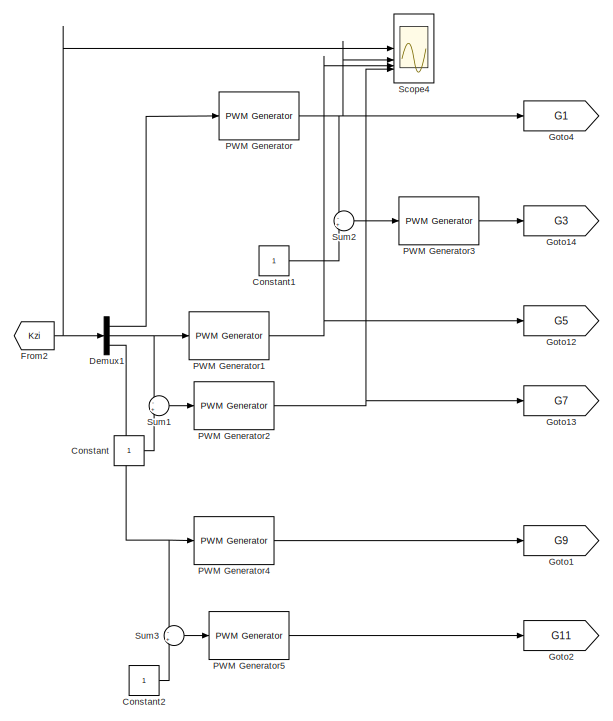
[diagram: root canvas - part 1/7, top right region]
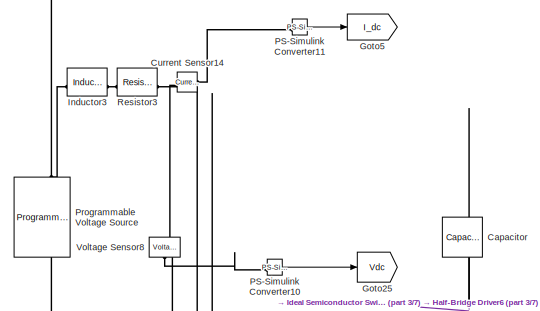
[diagram: root canvas - part 2/7, middle left region]
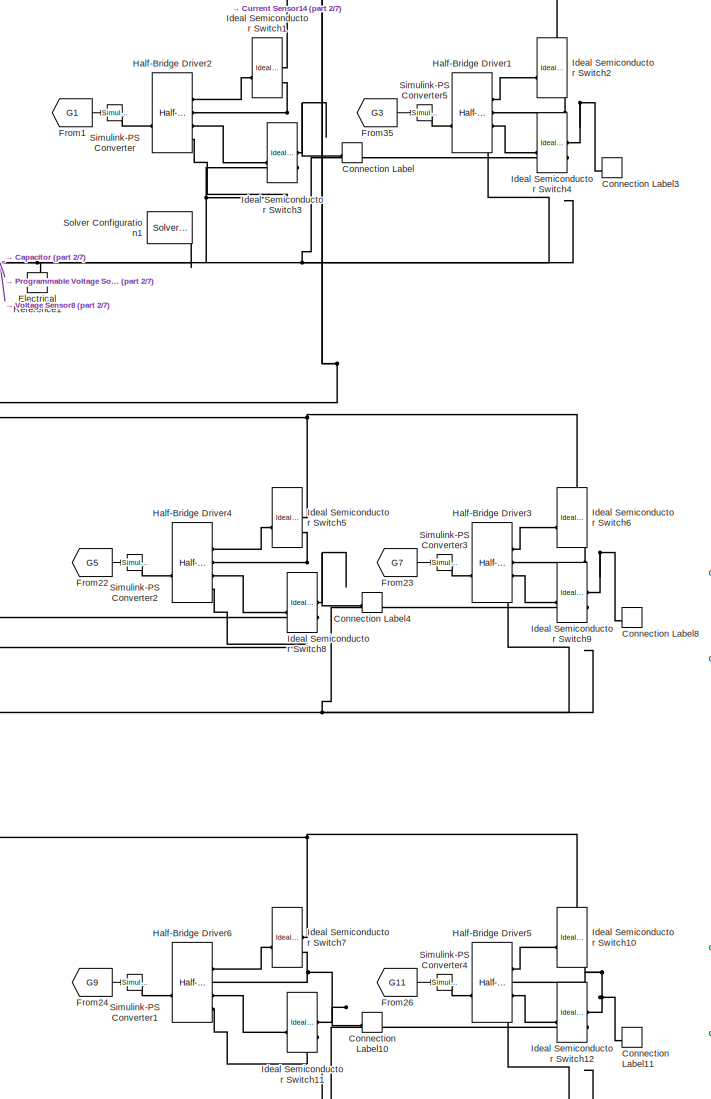
[diagram: root canvas - part 3/7, middle left region]
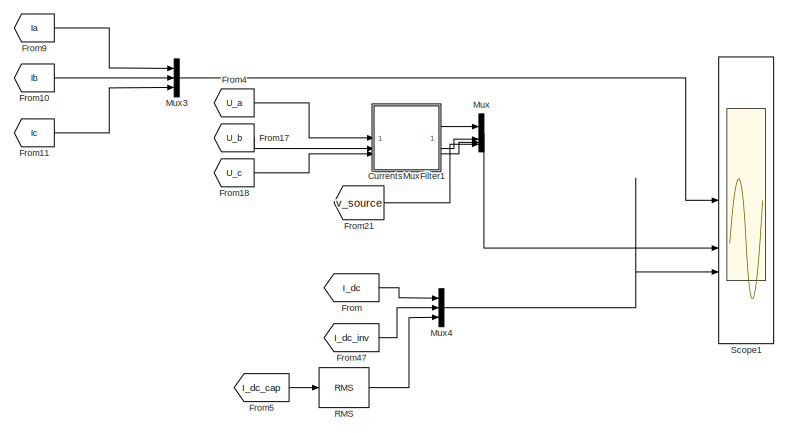
[diagram: root canvas - part 4/7, middle right region]
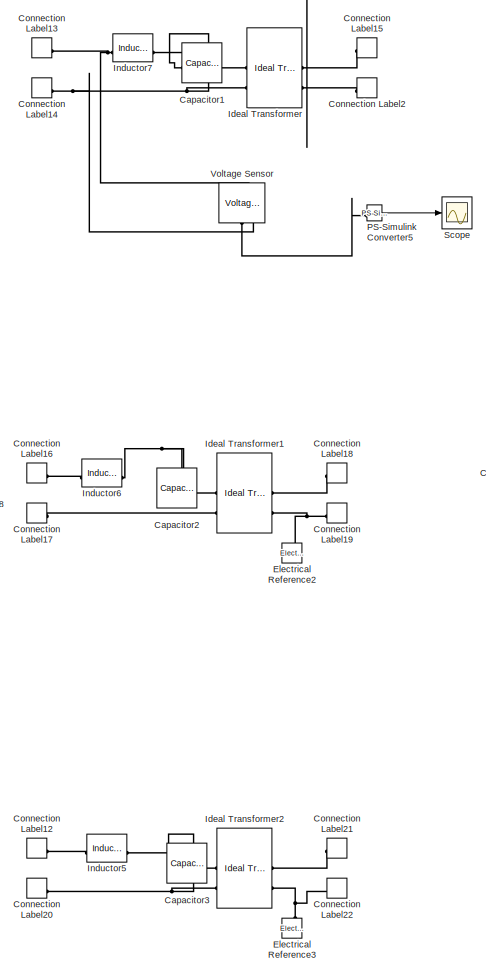
[diagram: root canvas - part 5/7, central region]
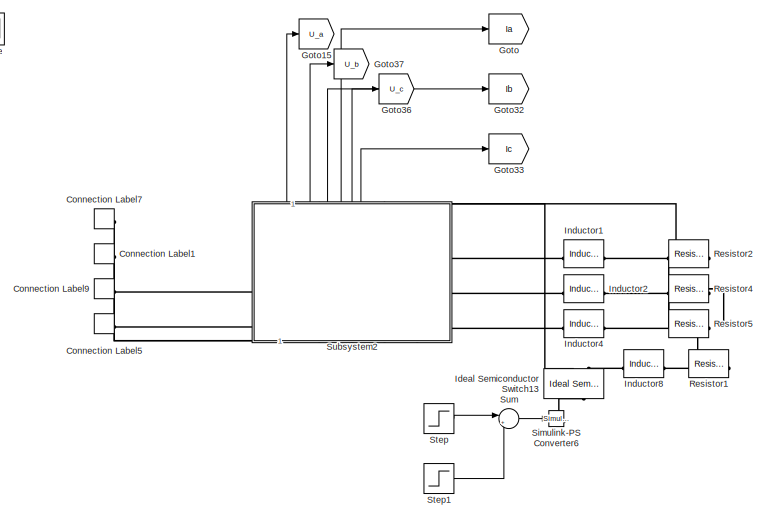
[diagram: root canvas - part 6/7, central region]
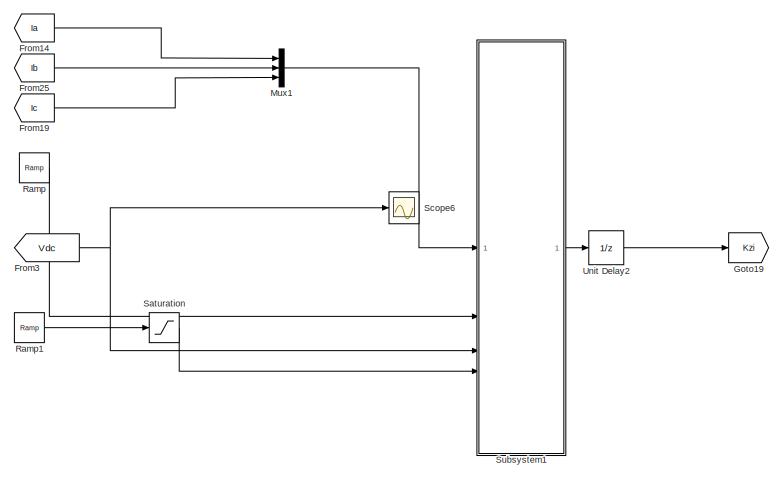
[diagram: root canvas - part 7/7, bottom right region]
MODEL slx_5b212e549556
KIND model
CONFIG AbsTol = auto
CONFIG EnableMultiTasking = off
CONFIG FixedStep = auto
CONFIG MaxStep = 1e-7
CONFIG MinStep = auto
CONFIG RelTol = 1e-3
CONFIG SampleTimeConstraint = Unconstrained
CONFIG SolverName = daessc
CONFIG StartTime = 0.0
CONFIG StopTime = 0.2
BLOCK [Reference] Capacitor  REF=fl_lib/Electrical/Electrical Elements/Capacitor
  NameLocation = left
  SourceBlock = fl_lib/Electrical/Electrical Elements/Capacitor
  SourceType = Capacitor
BLOCK [Reference] Capacitor1  REF=fl_lib/Electrical/Electrical Elements/Capacitor
  NameLocation = left
  SourceBlock = fl_lib/Electrical/Electrical Elements/Capacitor
  SourceType = Capacitor
BLOCK [Reference] Capacitor2  REF=fl_lib/Electrical/Electrical Elements/Capacitor
  NameLocation = left
  SourceBlock = fl_lib/Electrical/Electrical Elements/Capacitor
  SourceType = Capacitor
BLOCK [Reference] Capacitor3  REF=fl_lib/Electrical/Electrical Elements/Capacitor
  NameLocation = left
  SourceBlock = fl_lib/Electrical/Electrical Elements/Capacitor
  SourceType = Capacitor
BLOCK [ConnectionLabel] Connection Label
  Label = A01
BLOCK [ConnectionLabel] Connection Label1
  Label = A
  NameLocation = top
BLOCK [ConnectionLabel] Connection Label10
  Label = C01
BLOCK [ConnectionLabel] Connection Label11
  Label = C02
BLOCK [ConnectionLabel] Connection Label12
  Label = C01
  NameLocation = right
BLOCK [ConnectionLabel] Connection Label13
  Label = A01
  NameLocation = right
BLOCK [ConnectionLabel] Connection Label14
  Label = A02
  NameLocation = top
BLOCK [ConnectionLabel] Connection Label15
  Label = A
BLOCK [ConnectionLabel] Connection Label16
  Label = B01
  NameLocation = right
BLOCK [ConnectionLabel] Connection Label17
  Label = B02
  NameLocation = top
BLOCK [ConnectionLabel] Connection Label18
  Label = B
BLOCK [ConnectionLabel] Connection Label19
  Label = N
BLOCK [ConnectionLabel] Connection Label2
  Label = N
BLOCK [ConnectionLabel] Connection Label20
  Label = C02
  NameLocation = top
BLOCK [ConnectionLabel] Connection Label21
  Label = C
BLOCK [ConnectionLabel] Connection Label22
  Label = N
BLOCK [ConnectionLabel] Connection Label3
  Label = A02
BLOCK [ConnectionLabel] Connection Label4
  Label = B01
BLOCK [ConnectionLabel] Connection Label5
  Label = C
  NameLocation = top
BLOCK [ConnectionLabel] Connection Label7
  Label = N
  NameLocation = right
BLOCK [ConnectionLabel] Connection Label8
  Label = B02
BLOCK [ConnectionLabel] Connection Label9
  Label = B
  NameLocation = right
BLOCK [Constant] Constant
BLOCK [Constant] Constant1
BLOCK [Constant] Constant2
BLOCK [Reference] Current Sensor14  REF=fl_lib/Electrical/Electrical Sensors/Current Sensor
  LibrarySourceBlock = ee_lib/Sensors &\nTransducers/Current Sensor
  SourceBlock = fl_lib/Electrical/Electrical Sensors/Current Sensor
  SourceType = Current Sensor
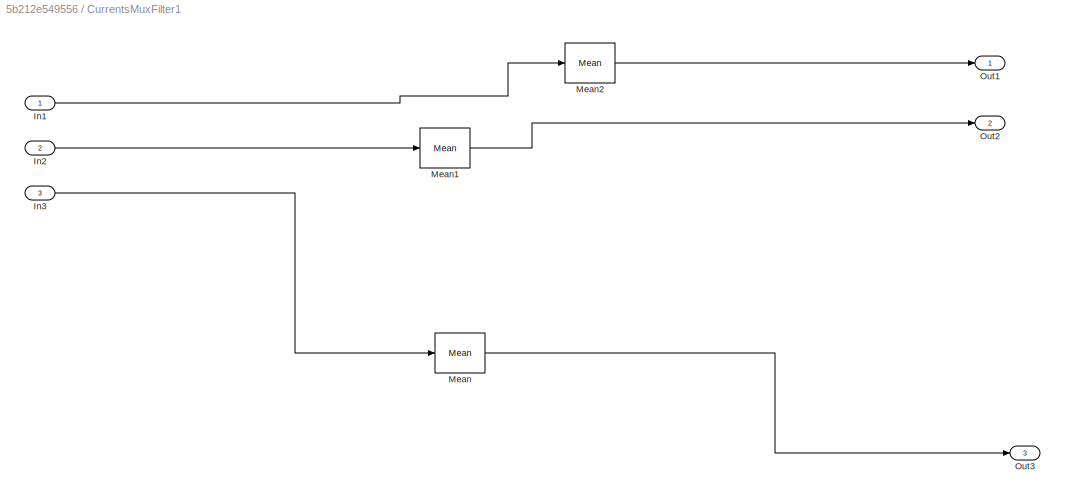
BLOCK [SubSystem] CurrentsMuxFilter1
BLOCK [Inport] CurrentsMuxFilter1/In1
BLOCK [Inport] CurrentsMuxFilter1/In2
  Port = 2
BLOCK [Inport] CurrentsMuxFilter1/In3
  Port = 3
BLOCK [Reference] CurrentsMuxFilter1/Mean  REF=spsMeanLib/Mean
  LibrarySourceBlock = sps_lib/Sensors and Measurements/Mean
  SourceBlock = spsMeanLib/Mean
  SourceType = Mean
BLOCK [Reference] CurrentsMuxFilter1/Mean1  REF=spsMeanLib/Mean
  LibrarySourceBlock = sps_lib/Sensors and Measurements/Mean
  SourceBlock = spsMeanLib/Mean
  SourceType = Mean
BLOCK [Reference] CurrentsMuxFilter1/Mean2  REF=spsMeanLib/Mean
  LibrarySourceBlock = sps_lib/Sensors and Measurements/Mean
  SourceBlock = spsMeanLib/Mean
  SourceType = Mean
BLOCK [Outport] CurrentsMuxFilter1/Out1
BLOCK [Outport] CurrentsMuxFilter1/Out2
  Port = 2
BLOCK [Outport] CurrentsMuxFilter1/Out3
  Port = 3
BLOCK [Demux] Demux1
  Outputs = 3
BLOCK [Reference] Electrical Reference1  REF=fl_lib/Electrical/Electrical Elements/Electrical Reference
  LibrarySourceBlock = ee_lib/Connectors &\nReferences/Electrical Reference
  NameLocation = right
  SourceBlock = fl_lib/Electrical/Electrical Elements/Electrical Reference
  SourceType = Electrical Reference
BLOCK [Reference] Electrical Reference2  REF=fl_lib/Electrical/Electrical Elements/Electrical Reference
  LibrarySourceBlock = ee_lib/Connectors &\nReferences/Electrical Reference
  NameLocation = right
  SourceBlock = fl_lib/Electrical/Electrical Elements/Electrical Reference
  SourceType = Electrical Reference
BLOCK [Reference] Electrical Reference3  REF=fl_lib/Electrical/Electrical Elements/Electrical Reference
  LibrarySourceBlock = ee_lib/Connectors &\nReferences/Electrical Reference
  NameLocation = right
  SourceBlock = fl_lib/Electrical/Electrical Elements/Electrical Reference
  SourceType = Electrical Reference
BLOCK [From] From
  GotoTag = I_dc
BLOCK [From] From1
  GotoTag = G1
BLOCK [From] From10
  GotoTag = Ib
BLOCK [From] From11
  GotoTag = Ic
BLOCK [From] From14
  GotoTag = Ia
BLOCK [From] From17
  GotoTag = U_b
BLOCK [From] From18
  GotoTag = U_c
BLOCK [From] From19
  GotoTag = Ic
BLOCK [From] From2
  GotoTag = Kzi
BLOCK [From] From21
  GotoTag = v_source
BLOCK [From] From22
  GotoTag = G5
BLOCK [From] From23
  GotoTag = G7
BLOCK [From] From24
  GotoTag = G9
BLOCK [From] From25
  GotoTag = Ib
BLOCK [From] From26
  GotoTag = G11
BLOCK [From] From3
  GotoTag = Vdc
BLOCK [From] From35
  GotoTag = G3
BLOCK [From] From4
  GotoTag = U_a
BLOCK [From] From47
  GotoTag = I_dc_inv
BLOCK [From] From5
  GotoTag = I_dc_cap
BLOCK [From] From9
  GotoTag = Ia
BLOCK [Goto] Goto
  GotoTag = Ia
BLOCK [Goto] Goto1
  GotoTag = G9
BLOCK [Goto] Goto12
  GotoTag = G5
BLOCK [Goto] Goto13
  GotoTag = G7
BLOCK [Goto] Goto14
  GotoTag = G3
BLOCK [Goto] Goto15
  GotoTag = U_a
BLOCK [Goto] Goto19
  GotoTag = Kzi
BLOCK [Goto] Goto2
  GotoTag = G11
BLOCK [Goto] Goto25
  GotoTag = Vdc
BLOCK [Goto] Goto32
  GotoTag = Ib
BLOCK [Goto] Goto33
  GotoTag = Ic
BLOCK [Goto] Goto36
  GotoTag = U_c
BLOCK [Goto] Goto37
  GotoTag = U_b
BLOCK [Goto] Goto4
  GotoTag = G1
BLOCK [Goto] Goto5
  GotoTag = I_dc
BLOCK [Reference] Half-Bridge Driver1  REF=ee_lib/Semiconductors &
Converters/Half-Bridge Driver
  SourceBlock = ee_lib/Semiconductors &\nConverters/Half-Bridge Driver
  SourceType = Half-Bridge Driver
BLOCK [Reference] Half-Bridge Driver2  REF=ee_lib/Semiconductors &
Converters/Half-Bridge Driver
  SourceBlock = ee_lib/Semiconductors &\nConverters/Half-Bridge Driver
  SourceType = Half-Bridge Driver
BLOCK [Reference] Half-Bridge Driver3  REF=ee_lib/Semiconductors &
Converters/Half-Bridge Driver
  SourceBlock = ee_lib/Semiconductors &\nConverters/Half-Bridge Driver
  SourceType = Half-Bridge Driver
BLOCK [Reference] Half-Bridge Driver4  REF=ee_lib/Semiconductors &
Converters/Half-Bridge Driver
  SourceBlock = ee_lib/Semiconductors &\nConverters/Half-Bridge Driver
  SourceType = Half-Bridge Driver
BLOCK [Reference] Half-Bridge Driver5  REF=ee_lib/Semiconductors &
Converters/Half-Bridge Driver
  SourceBlock = ee_lib/Semiconductors &\nConverters/Half-Bridge Driver
  SourceType = Half-Bridge Driver
BLOCK [Reference] Half-Bridge Driver6  REF=ee_lib/Semiconductors &
Converters/Half-Bridge Driver
  SourceBlock = ee_lib/Semiconductors &\nConverters/Half-Bridge Driver
  SourceType = Half-Bridge Driver
BLOCK [Reference] Ideal Semiconductor Switch1  REF=ee_lib/Semiconductors &
Converters/Ideal Semiconductor
Switch
  SourceBlock = ee_lib/Semiconductors &\nConverters/Ideal Semiconductor\nSwitch
  SourceType = Ideal Semiconductor\nSwitch
BLOCK [Reference] Ideal Semiconductor Switch10  REF=ee_lib/Semiconductors &
Converters/Ideal Semiconductor
Switch
  SourceBlock = ee_lib/Semiconductors &\nConverters/Ideal Semiconductor\nSwitch
  SourceType = Ideal Semiconductor\nSwitch
BLOCK [Reference] Ideal Semiconductor Switch11  REF=ee_lib/Semiconductors &
Converters/Ideal Semiconductor
Switch
  SourceBlock = ee_lib/Semiconductors &\nConverters/Ideal Semiconductor\nSwitch
  SourceType = Ideal Semiconductor\nSwitch
BLOCK [Reference] Ideal Semiconductor Switch12  REF=ee_lib/Semiconductors &
Converters/Ideal Semiconductor
Switch
  SourceBlock = ee_lib/Semiconductors &\nConverters/Ideal Semiconductor\nSwitch
  SourceType = Ideal Semiconductor\nSwitch
BLOCK [Reference] Ideal Semiconductor Switch13  REF=ee_lib/Semiconductors &
Converters/Ideal Semiconductor
Switch
  NameLocation = right
  SourceBlock = ee_lib/Semiconductors &\nConverters/Ideal Semiconductor\nSwitch
  SourceType = Ideal Semiconductor\nSwitch
BLOCK [Reference] Ideal Semiconductor Switch2  REF=ee_lib/Semiconductors &
Converters/Ideal Semiconductor
Switch
  SourceBlock = ee_lib/Semiconductors &\nConverters/Ideal Semiconductor\nSwitch
  SourceType = Ideal Semiconductor\nSwitch
BLOCK [Reference] Ideal Semiconductor Switch3  REF=ee_lib/Semiconductors &
Converters/Ideal Semiconductor
Switch
  SourceBlock = ee_lib/Semiconductors &\nConverters/Ideal Semiconductor\nSwitch
  SourceType = Ideal Semiconductor\nSwitch
BLOCK [Reference] Ideal Semiconductor Switch4  REF=ee_lib/Semiconductors &
Converters/Ideal Semiconductor
Switch
  SourceBlock = ee_lib/Semiconductors &\nConverters/Ideal Semiconductor\nSwitch
  SourceType = Ideal Semiconductor\nSwitch
BLOCK [Reference] Ideal Semiconductor Switch5  REF=ee_lib/Semiconductors &
Converters/Ideal Semiconductor
Switch
  SourceBlock = ee_lib/Semiconductors &\nConverters/Ideal Semiconductor\nSwitch
  SourceType = Ideal Semiconductor\nSwitch
BLOCK [Reference] Ideal Semiconductor Switch6  REF=ee_lib/Semiconductors &
Converters/Ideal Semiconductor
Switch
  SourceBlock = ee_lib/Semiconductors &\nConverters/Ideal Semiconductor\nSwitch
  SourceType = Ideal Semiconductor\nSwitch
BLOCK [Reference] Ideal Semiconductor Switch7  REF=ee_lib/Semiconductors &
Converters/Ideal Semiconductor
Switch
  SourceBlock = ee_lib/Semiconductors &\nConverters/Ideal Semiconductor\nSwitch
  SourceType = Ideal Semiconductor\nSwitch
BLOCK [Reference] Ideal Semiconductor Switch8  REF=ee_lib/Semiconductors &
Converters/Ideal Semiconductor
Switch
  SourceBlock = ee_lib/Semiconductors &\nConverters/Ideal Semiconductor\nSwitch
  SourceType = Ideal Semiconductor\nSwitch
BLOCK [Reference] Ideal Semiconductor Switch9  REF=ee_lib/Semiconductors &
Converters/Ideal Semiconductor
Switch
  SourceBlock = ee_lib/Semiconductors &\nConverters/Ideal Semiconductor\nSwitch
  SourceType = Ideal Semiconductor\nSwitch
BLOCK [Reference] Ideal Transformer  REF=fl_lib/Electrical/Electrical Elements/Ideal Transformer
  SourceBlock = fl_lib/Electrical/Electrical Elements/Ideal Transformer
  SourceType = Ideal Transformer
BLOCK [Reference] Ideal Transformer1  REF=fl_lib/Electrical/Electrical Elements/Ideal Transformer
  SourceBlock = fl_lib/Electrical/Electrical Elements/Ideal Transformer
  SourceType = Ideal Transformer
BLOCK [Reference] Ideal Transformer2  REF=fl_lib/Electrical/Electrical Elements/Ideal Transformer
  SourceBlock = fl_lib/Electrical/Electrical Elements/Ideal Transformer
  SourceType = Ideal Transformer
BLOCK [Reference] Inductor1  REF=ee_lib/Passive/Inductor
  SourceBlock = ee_lib/Passive/Inductor
  SourceType = Inductor
BLOCK [Reference] Inductor2  REF=ee_lib/Passive/Inductor
  SourceBlock = ee_lib/Passive/Inductor
  SourceType = Inductor
BLOCK [Reference] Inductor3  REF=ee_lib/Passive/Inductor
  SourceBlock = ee_lib/Passive/Inductor
  SourceType = Inductor
BLOCK [Reference] Inductor4  REF=ee_lib/Passive/Inductor
  SourceBlock = ee_lib/Passive/Inductor
  SourceType = Inductor
BLOCK [Reference] Inductor5  REF=ee_lib/Passive/Inductor
  SourceBlock = ee_lib/Passive/Inductor
  SourceType = Inductor
BLOCK [Reference] Inductor6  REF=ee_lib/Passive/Inductor
  SourceBlock = ee_lib/Passive/Inductor
  SourceType = Inductor
BLOCK [Reference] Inductor7  REF=ee_lib/Passive/Inductor
  SourceBlock = ee_lib/Passive/Inductor
  SourceType = Inductor
BLOCK [Reference] Inductor8  REF=ee_lib/Passive/Inductor
  SourceBlock = ee_lib/Passive/Inductor
  SourceType = Inductor
BLOCK [Mux] Mux
  DisplayOption = bar
BLOCK [Mux] Mux1
  DisplayOption = bar
  Inputs = 3
BLOCK [Mux] Mux3
  DisplayOption = bar
  Inputs = 3
BLOCK [Mux] Mux4
  DisplayOption = bar
  Inputs = 3
BLOCK [Reference] PS-Simulink Converter10  REF=nesl_utility/PS-Simulink
Converter
  SourceBlock = nesl_utility/PS-Simulink\nConverter
  SourceType = PS-Simulink\nConverter
BLOCK [Reference] PS-Simulink Converter11  REF=nesl_utility/PS-Simulink
Converter
  SourceBlock = nesl_utility/PS-Simulink\nConverter
  SourceType = PS-Simulink\nConverter
BLOCK [Reference] PS-Simulink Converter5  REF=nesl_utility/PS-Simulink
Converter
  SourceBlock = nesl_utility/PS-Simulink\nConverter
  SourceType = PS-Simulink\nConverter
BLOCK [Reference] PWM Generator  REF=eePwmGenerator/PWM Generator
  LibrarySourceBlock = ee_sl_lib/Pulse Width\nModulation/PWM Generator
  SourceBlock = eePwmGenerator/PWM Generator
  SourceType = PWM Generator
BLOCK [Reference] PWM Generator1  REF=eePwmGenerator/PWM Generator
  LibrarySourceBlock = ee_sl_lib/Pulse Width\nModulation/PWM Generator
  SourceBlock = eePwmGenerator/PWM Generator
  SourceType = PWM Generator
BLOCK [Reference] PWM Generator2  REF=eePwmGenerator/PWM Generator
  LibrarySourceBlock = ee_sl_lib/Pulse Width\nModulation/PWM Generator
  SourceBlock = eePwmGenerator/PWM Generator
  SourceType = PWM Generator
BLOCK [Reference] PWM Generator3  REF=eePwmGenerator/PWM Generator
  LibrarySourceBlock = ee_sl_lib/Pulse Width\nModulation/PWM Generator
  SourceBlock = eePwmGenerator/PWM Generator
  SourceType = PWM Generator
BLOCK [Reference] PWM Generator4  REF=eePwmGenerator/PWM Generator
  LibrarySourceBlock = ee_sl_lib/Pulse Width\nModulation/PWM Generator
  SourceBlock = eePwmGenerator/PWM Generator
  SourceType = PWM Generator
BLOCK [Reference] PWM Generator5  REF=eePwmGenerator/PWM Generator
  LibrarySourceBlock = ee_sl_lib/Pulse Width\nModulation/PWM Generator
  SourceBlock = eePwmGenerator/PWM Generator
  SourceType = PWM Generator
BLOCK [Reference] Programmable Voltage Source  REF=ee_lib/Sources/Programmable Voltage
Source
  NameLocation = right
  SourceBlock = ee_lib/Sources/Programmable Voltage\nSource
  SourceType = Programmable Voltage\nSource
BLOCK [Reference] RMS  REF=spsRMSLib/RMS
  LibrarySourceBlock = sps_lib/Sensors and Measurements/RMS
  SourceBlock = spsRMSLib/RMS
  SourceType = RMS
BLOCK [Reference] Ramp  REF=simulink/Sources/Ramp
  SourceBlock = simulink/Sources/Ramp
  SourceType = Ramp
BLOCK [Reference] Ramp1  REF=simulink/Sources/Ramp
  SourceBlock = simulink/Sources/Ramp
  SourceType = Ramp
BLOCK [Reference] Resistor1  REF=ee_lib/Passive/Resistor
  NameLocation = top
  SourceBlock = ee_lib/Passive/Resistor
  SourceType = Resistor
BLOCK [Reference] Resistor2  REF=ee_lib/Passive/Resistor
  NameLocation = top
  SourceBlock = ee_lib/Passive/Resistor
  SourceType = Resistor
BLOCK [Reference] Resistor3  REF=ee_lib/Passive/Resistor
  NameLocation = top
  SourceBlock = ee_lib/Passive/Resistor
  SourceType = Resistor
BLOCK [Reference] Resistor4  REF=ee_lib/Passive/Resistor
  NameLocation = top
  SourceBlock = ee_lib/Passive/Resistor
  SourceType = Resistor
BLOCK [Reference] Resistor5  REF=ee_lib/Passive/Resistor
  NameLocation = top
  SourceBlock = ee_lib/Passive/Resistor
  SourceType = Resistor
BLOCK [Saturate] Saturation
  UpperLimit = 450
BLOCK [Scope] Scope
  ActiveDisplayYMaximum = 616.82988904528236
  ActiveDisplayYMinimum = -551.33280842234649
  Floating = off
  GraphicalSettings = {"AxesScalingProperties":{"AlignXAxis":"Center","AlignYAxis":"Center","AutoScaleXAxisLimits":false,"AxesScaling":"Manual","AxesScalingNumUpdates":10,"ExpandOnly":true,"ScaleAxesLimitsAtStop":false,"XAxisDataRange":100,"YAxisDataRange":80},"DisplayProperties":{"ColorOrder":["auto","auto","auto","auto","auto","auto","auto","auto","auto","auto","auto","auto","auto","auto","auto","auto","auto","auto",...<+2006ch>
  MultipleDisplayCache = [{"MaxYLimMag":616.82988904528236,"MaxYLimReal":616.82988904528236,"MinYLimMag":0,"MinYLimReal":-551.33280842234649,"PlotAsMagnitudePhase":false,"ShowGrid":true,"ShowLegend":false,"Title":"%<SignalLabel>","YLabel":""}]
  NumInputPorts = 1
  ScopeFrameLocation = window
  WasSavedAsWebScope = on
  WindowPosition = [811.000000,329.000000,865.000000,734.000000,]
BLOCK [Scope] Scope1
  ActiveDisplayString = 6
  ActiveDisplayYMaximum = 1
  ActiveDisplayYMinimum = -1
  ContainerLayout = {"WindowBounds":[978,0,942,1152],"gridDimensions":{"w":1,"h":1},"tileCount":1,"tileCoverage":1,"columnWeights":1,"rowWeights":1,"tileOccupancy":{"children":[{"id":"/Scope1"},{"id":"/Scope4"}]}}
  DataLoggingVariableName = ScopeData1
  Floating = off
  GraphicalSettings = {"AxesScalingProperties":{"AlignXAxis":"Center","AlignYAxis":"Center","AutoScaleXAxisLimits":false,"AxesScaling":"Manual","AxesScalingNumUpdates":10,"ExpandOnly":true,"ScaleAxesLimitsAtStop":false,"XAxisDataRange":100,"YAxisDataRange":80},"DisplayProperties":{"ColorOrder":["auto","auto","auto","auto","auto","auto","auto","auto","auto","auto","auto","auto","auto","auto","auto","auto","auto","auto",...<+4886ch>
  LayoutDimensionsString = [3 2]
  MultipleDisplayCache = [{"MaxYLimMag":580.56003875067006,"MaxYLimReal":580.56003875067006,"MinYLimMag":0,"MinYLimReal":-570.76223279325586,"PlotAsMagnitudePhase":false,"ShowGrid":true,"ShowLegend":false,"Title":"%<SignalLabel>","YLabel":""},{"MaxYLimMag":795.32206461140208,"MaxYLimReal":795.32206461140208,"MinYLimMag":0,"MinYLimReal":-767.65498819296567,"PlotAsMagnitudePhase":false,"ShowGrid":true,"ShowLegend":false,"Ti...<+746ch>
  NumInputPorts = 6
  ScopeFrameLocation = container
  Visible = on
  WasSavedAsWebScope = on
  WindowPosition = [978.000000,49.000000,942.000000,1122.000000,]
BLOCK [Scope] Scope4
  ActiveDisplayYMaximum = 0.73692249792768538
  ActiveDisplayYMinimum = -0.081880277547520586
  ContainerLayout = {"WindowBounds":[978,0,942,1152],"gridDimensions":{"w":1,"h":1},"tileCount":1,"tileCoverage":1,"columnWeights":1,"rowWeights":1,"tileOccupancy":{"children":[{"id":"/Scope1"},{"id":"/Scope4"}]}}
  DataLoggingVariableName = ScopeData2
  Floating = off
  GraphicalSettings = {"Style":{"BackgroundColor":[0.12941176470588237,0.12941176470588237,0.12941176470588237],"AxesColor":[0.07058823529411765,0.07058823529411765,0.07058823529411765],"LabelsColor":[0.8509803921568627,0.8509803921568627,0.8509803921568627],"PreserveColors":false,"Visible":[true,true,true,true,true,true],"LineStyle":["-","-","-","-","-","-"],"LineWidth":[1.5,1.5,1.5,1.5,1.5,1.5],"BarWidth":[0.9,0.9,0....<+3721ch>
  LayoutDimensionsString = [4 1]
  MultipleDisplayCache = [{"MaxYLimMag":0.73692249792768538,"MaxYLimReal":0.73692249792768538,"MinYLimMag":0,"MinYLimReal":-0.081880277547520586,"PlotAsMagnitudePhase":false,"ShowGrid":true,"ShowLegend":false,"Title":"%<SignalLabel>","YLabel":""},{"MaxYLimMag":1.125,"MaxYLimReal":1.125,"MinYLimMag":0,"MinYLimReal":-0.12499999999999997,"PlotAsMagnitudePhase":false,"ShowGrid":true,"ShowLegend":false,"Title":"%<SignalLabel>"...<+398ch>
  NumInputPorts = 4
  ScopeFrameLocation = container
  Visible = on
  WasSavedAsWebScope = on
  WindowPosition = [978.000000,49.000000,942.000000,1122.000000,]
BLOCK [Scope] Scope6
  ActiveDisplayYMaximum = 525.8505991831571
  ActiveDisplayYMinimum = -58.427844353684108
  DataLoggingVariableName = ScopeData4
  Floating = off
  GraphicalSettings = {"Style":{"BackgroundColor":[0.12941176470588237,0.12941176470588237,0.12941176470588237],"AxesColor":[0.07058823529411765,0.07058823529411765,0.07058823529411765],"LabelsColor":[0.8509803921568627,0.8509803921568627,0.8509803921568627],"PreserveColors":false,"Visible":[true],"LineStyle":["-"],"LineWidth":[1.5],"BarWidth":[0.9],"LineColor":["auto"],"LineFaceAlpha":[1],"LineEdgeAlpha":[1],"Marker":...<+2004ch>
  MultipleDisplayCache = [{"MaxYLimMag":525.8505991831571,"MaxYLimReal":525.8505991831571,"MinYLimMag":0,"MinYLimReal":-58.427844353684108,"PlotAsMagnitudePhase":false,"ShowGrid":true,"ShowLegend":false,"Title":"%<SignalLabel>","YLabel":""}]
  NumInputPorts = 1
  ScopeFrameLocation = window
  WasSavedAsWebScope = on
  WindowPosition = [670.000000,209.000000,580.000000,480.000000,]
BLOCK [Reference] Simulink-PS Converter  REF=nesl_utility/Simulink-PS
Converter
  SourceBlock = nesl_utility/Simulink-PS\nConverter
  SourceType = Simulink-PS\nConverter
BLOCK [Reference] Simulink-PS Converter1  REF=nesl_utility/Simulink-PS
Converter
  SourceBlock = nesl_utility/Simulink-PS\nConverter
  SourceType = Simulink-PS\nConverter
BLOCK [Reference] Simulink-PS Converter2  REF=nesl_utility/Simulink-PS
Converter
  SourceBlock = nesl_utility/Simulink-PS\nConverter
  SourceType = Simulink-PS\nConverter
BLOCK [Reference] Simulink-PS Converter3  REF=nesl_utility/Simulink-PS
Converter
  SourceBlock = nesl_utility/Simulink-PS\nConverter
  SourceType = Simulink-PS\nConverter
BLOCK [Reference] Simulink-PS Converter4  REF=nesl_utility/Simulink-PS
Converter
  SourceBlock = nesl_utility/Simulink-PS\nConverter
  SourceType = Simulink-PS\nConverter
BLOCK [Reference] Simulink-PS Converter5  REF=nesl_utility/Simulink-PS
Converter
  SourceBlock = nesl_utility/Simulink-PS\nConverter
  SourceType = Simulink-PS\nConverter
BLOCK [Reference] Simulink-PS Converter6  REF=nesl_utility/Simulink-PS
Converter
  SourceBlock = nesl_utility/Simulink-PS\nConverter
  SourceType = Simulink-PS\nConverter
BLOCK [Reference] Solver Configuration1  REF=nesl_utility/Solver
Configuration
  SourceBlock = nesl_utility/Solver\nConfiguration
  SourceType = Solver\nConfiguration
BLOCK [Step] Step
  SampleTime = 0
  Time = 0.08
BLOCK [Step] Step1
  After = 0
  Before = 1
  SampleTime = 0
  Time = 0.12
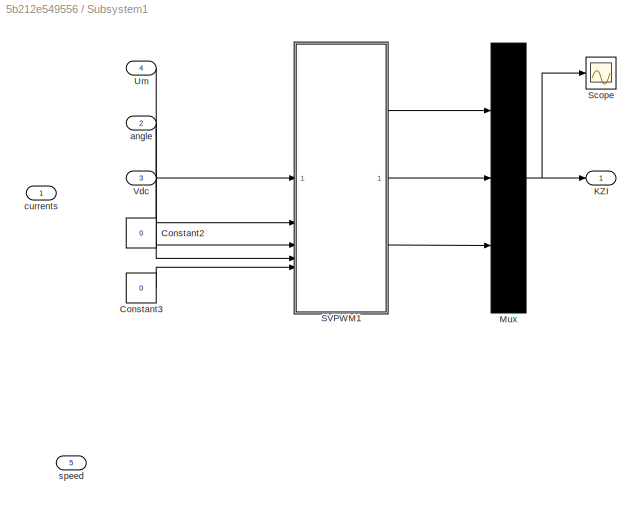
BLOCK [SubSystem] Subsystem1
  SystemSampleTime = 1/10000
  TreatAsAtomicUnit = on
BLOCK [Constant] Subsystem1/Constant2
  Value = 0
BLOCK [Constant] Subsystem1/Constant3
  Value = 0
BLOCK [Outport] Subsystem1/KZI
BLOCK [Mux] Subsystem1/Mux
  DisplayOption = bar
  Inputs = 3
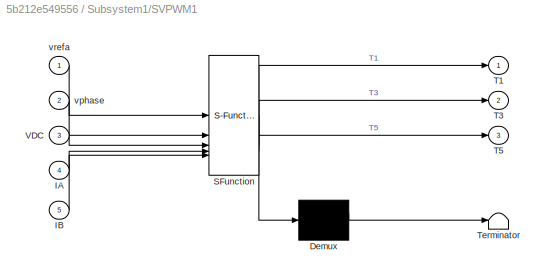
BLOCK [SubSystem] Subsystem1/SVPWM1
  ErrorFcn = Stateflow.Translate.translate
  PermitHierarchicalResolution = ExplicitOnly
  SFBlockType = MATLAB Function
  TreatAsAtomicUnit = on
BLOCK [Demux] Subsystem1/SVPWM1/ Demux 
  Outputs = 1
BLOCK [S-Function] Subsystem1/SVPWM1/ SFunction 
  EnableBusSupport = off
  FunctionName = sf_sfun
  PortCounts = [5 4]
  SFcnIsStateOwnerBlock = off
  SFunctionDeploymentMode = off
  Tag = Stateflow S-Function 3
BLOCK [Terminator] Subsystem1/SVPWM1/ Terminator 
BLOCK [Inport] Subsystem1/SVPWM1/IA
  Port = 4
BLOCK [Inport] Subsystem1/SVPWM1/IB
  Port = 5
BLOCK [Outport] Subsystem1/SVPWM1/T1
  VectorParamsAs1DForOutWhenUnconnected = off
BLOCK [Outport] Subsystem1/SVPWM1/T3
  Port = 2
BLOCK [Outport] Subsystem1/SVPWM1/T5
  Port = 3
BLOCK [Inport] Subsystem1/SVPWM1/VDC
  Port = 3
BLOCK [Inport] Subsystem1/SVPWM1/vphase
  Port = 2
BLOCK [Inport] Subsystem1/SVPWM1/vrefa
BLOCK [Scope] Subsystem1/Scope
  ActiveDisplayYMaximum = 0.8125
  ActiveDisplayYMinimum = 0.18750000000000003
  DataLoggingVariableName = ScopeData3
  Floating = off
  GraphicalSettings = {"Style":{"BackgroundColor":[0.12941176470588237,0.12941176470588237,0.12941176470588237],"AxesColor":[0.07058823529411765,0.07058823529411765,0.07058823529411765],"LabelsColor":[0.8509803921568627,0.8509803921568627,0.8509803921568627],"PreserveColors":false,"Visible":[true,true,true],"LineStyle":["-","-","-"],"LineWidth":[1.5,1.5,1.5],"BarWidth":[0.9,0.9,0.9],"LineColor":["auto","auto","auto"],"...<+2201ch>
  MultipleDisplayCache = [{"MaxYLimMag":0.8125,"MaxYLimReal":0.8125,"MinYLimMag":0.18750000000000003,"MinYLimReal":0.18750000000000003,"PlotAsMagnitudePhase":false,"ShowGrid":true,"ShowLegend":false,"Title":"%<SignalLabel>","YLabel":""}]
  NumInputPorts = 1
  ScopeFrameLocation = window
  Visible = on
  WasSavedAsWebScope = on
  WindowPosition = [890.000000,554.000000,560.000000,420.000000,]
BLOCK [Inport] Subsystem1/Um
  Port = 4
BLOCK [Inport] Subsystem1/Vdc
  Port = 3
BLOCK [Inport] Subsystem1/angle
  Port = 2
BLOCK [Inport] Subsystem1/currents
BLOCK [Inport] Subsystem1/speed
  Port = 5
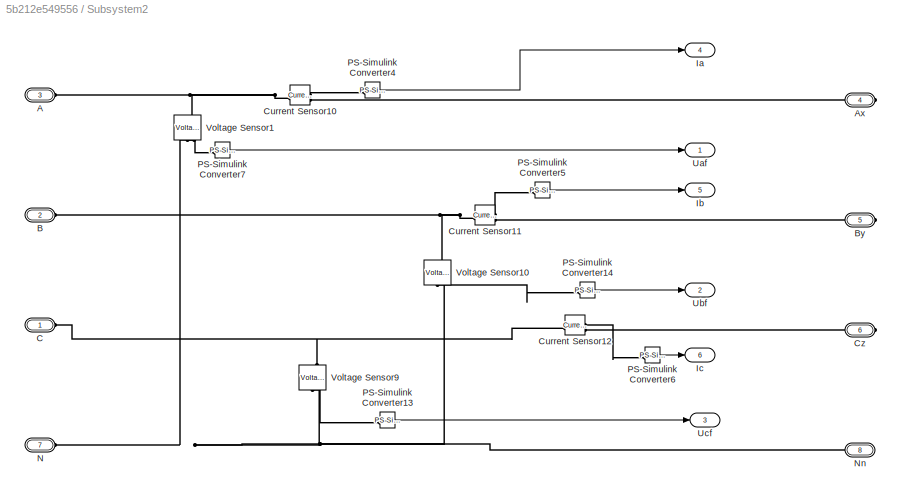
BLOCK [SubSystem] Subsystem2
  NameLocation = right
  PortSchema = {"entries":[{"content":{"sides":[{"content":{},"type":"ConnectorPlacement.EquallySpacedRectSide","uuid":"18ff9a98-da5f-4d42-bf88-8b80acaefaab"},{"content":{"connectorIds":["Out1","Out2","Out3","Out4","Out5","Out6"],"side":"RIGHT"},"type":"ConnectorPlacement.EquallySpacedRectSide","uuid":"2ae2e449-c022-4e43-8d74-e7903f555369"},{"content":{"connectorIds":["LConn1","LConn2","LConn3","LConn4"],"side":...<+467ch>
BLOCK [PMIOPort] Subsystem2/A
  Port = 3
  Side = Left
BLOCK [PMIOPort] Subsystem2/Ax
  Port = 4
  Side = Right
BLOCK [PMIOPort] Subsystem2/B
  Port = 2
  Side = Left
BLOCK [PMIOPort] Subsystem2/By
  Port = 5
  Side = Right
BLOCK [PMIOPort] Subsystem2/C
  Side = Left
BLOCK [Reference] Subsystem2/Current Sensor10  REF=fl_lib/Electrical/Electrical Sensors/Current Sensor
  LibrarySourceBlock = ee_lib/Sensors &\nTransducers/Current Sensor
  SourceBlock = fl_lib/Electrical/Electrical Sensors/Current Sensor
  SourceType = Current Sensor
BLOCK [Reference] Subsystem2/Current Sensor11  REF=fl_lib/Electrical/Electrical Sensors/Current Sensor
  LibrarySourceBlock = ee_lib/Sensors &\nTransducers/Current Sensor
  SourceBlock = fl_lib/Electrical/Electrical Sensors/Current Sensor
  SourceType = Current Sensor
BLOCK [Reference] Subsystem2/Current Sensor12  REF=fl_lib/Electrical/Electrical Sensors/Current Sensor
  LibrarySourceBlock = ee_lib/Sensors &\nTransducers/Current Sensor
  SourceBlock = fl_lib/Electrical/Electrical Sensors/Current Sensor
  SourceType = Current Sensor
BLOCK [PMIOPort] Subsystem2/Cz
  Port = 6
  Side = Right
BLOCK [Outport] Subsystem2/Ia
  Port = 4
BLOCK [Outport] Subsystem2/Ib
  Port = 5
BLOCK [Outport] Subsystem2/Ic
  Port = 6
BLOCK [PMIOPort] Subsystem2/N
  Port = 7
  Side = Left
BLOCK [PMIOPort] Subsystem2/Nn
  Port = 8
  Side = Right
BLOCK [Reference] Subsystem2/PS-Simulink Converter13  REF=nesl_utility/PS-Simulink
Converter
  SourceBlock = nesl_utility/PS-Simulink\nConverter
  SourceType = PS-Simulink\nConverter
BLOCK [Reference] Subsystem2/PS-Simulink Converter14  REF=nesl_utility/PS-Simulink
Converter
  SourceBlock = nesl_utility/PS-Simulink\nConverter
  SourceType = PS-Simulink\nConverter
BLOCK [Reference] Subsystem2/PS-Simulink Converter4  REF=nesl_utility/PS-Simulink
Converter
  SourceBlock = nesl_utility/PS-Simulink\nConverter
  SourceType = PS-Simulink\nConverter
BLOCK [Reference] Subsystem2/PS-Simulink Converter5  REF=nesl_utility/PS-Simulink
Converter
  SourceBlock = nesl_utility/PS-Simulink\nConverter
  SourceType = PS-Simulink\nConverter
BLOCK [Reference] Subsystem2/PS-Simulink Converter6  REF=nesl_utility/PS-Simulink
Converter
  SourceBlock = nesl_utility/PS-Simulink\nConverter
  SourceType = PS-Simulink\nConverter
BLOCK [Reference] Subsystem2/PS-Simulink Converter7  REF=nesl_utility/PS-Simulink
Converter
  SourceBlock = nesl_utility/PS-Simulink\nConverter
  SourceType = PS-Simulink\nConverter
BLOCK [Outport] Subsystem2/Uaf
BLOCK [Outport] Subsystem2/Ubf
  Port = 2
BLOCK [Outport] Subsystem2/Ucf
  Port = 3
BLOCK [Reference] Subsystem2/Voltage Sensor1  REF=fl_lib/Electrical/Electrical Sensors/Voltage Sensor
  LibrarySourceBlock = ee_lib/Sensors &\nTransducers/Voltage Sensor
  NameLocation = right
  SourceBlock = fl_lib/Electrical/Electrical Sensors/Voltage Sensor
  SourceType = Voltage Sensor
BLOCK [Reference] Subsystem2/Voltage Sensor10  REF=fl_lib/Electrical/Electrical Sensors/Voltage Sensor
  LibrarySourceBlock = ee_lib/Sensors &\nTransducers/Voltage Sensor
  NameLocation = right
  SourceBlock = fl_lib/Electrical/Electrical Sensors/Voltage Sensor
  SourceType = Voltage Sensor
BLOCK [Reference] Subsystem2/Voltage Sensor9  REF=fl_lib/Electrical/Electrical Sensors/Voltage Sensor
  LibrarySourceBlock = ee_lib/Sensors &\nTransducers/Voltage Sensor
  NameLocation = right
  SourceBlock = fl_lib/Electrical/Electrical Sensors/Voltage Sensor
  SourceType = Voltage Sensor
BLOCK [Sum] Sum
  Inputs = |++
BLOCK [Sum] Sum1
  Inputs = -+
BLOCK [Sum] Sum2
  Inputs = -+
BLOCK [Sum] Sum3
  Inputs = -+
BLOCK [UnitDelay] Unit Delay2
  HasFrameUpgradeWarning = on
  SampleTime = -1
BLOCK [Reference] Voltage Sensor  REF=fl_lib/Electrical/Electrical Sensors/Voltage Sensor
  NameLocation = right
  SourceBlock = fl_lib/Electrical/Electrical Sensors/Voltage Sensor
  SourceType = Voltage Sensor
BLOCK [Reference] Voltage Sensor8  REF=fl_lib/Electrical/Electrical Sensors/Voltage Sensor
  LibrarySourceBlock = ee_lib/Sensors &\nTransducers/Voltage Sensor
  NameLocation = right
  SourceBlock = fl_lib/Electrical/Electrical Sensors/Voltage Sensor
  SourceType = Voltage Sensor
LINE Constant1:1 -> Sum2:2
LINE Constant2:1 -> Sum3:2
LINE Constant:1 -> Sum1:2
LINE CurrentsMuxFilter1/In1:1 -> CurrentsMuxFilter1/Mean2:1
LINE CurrentsMuxFilter1/In2:1 -> CurrentsMuxFilter1/Mean1:1
LINE CurrentsMuxFilter1/In3:1 -> CurrentsMuxFilter1/Mean:1
LINE CurrentsMuxFilter1/Mean1:1 -> CurrentsMuxFilter1/Out2:1
LINE CurrentsMuxFilter1/Mean2:1 -> CurrentsMuxFilter1/Out1:1
LINE CurrentsMuxFilter1/Mean:1 -> CurrentsMuxFilter1/Out3:1
LINE CurrentsMuxFilter1:1 -> Mux:1
LINE CurrentsMuxFilter1:2 -> Mux:2
LINE CurrentsMuxFilter1:3 -> Mux:3
LINE Demux1:1 -> PWM Generator:1
NET Demux1:2 -> PWM Generator1:1, Sum1:1
NET Demux1:3 -> PWM Generator4:1, Sum3:1
LINE From10:1 -> Mux3:2
LINE From11:1 -> Mux3:3
LINE From14:1 -> Mux1:1
LINE From17:1 -> CurrentsMuxFilter1:2
LINE From18:1 -> CurrentsMuxFilter1:3
LINE From19:1 -> Mux1:3
LINE From1:1 -> Simulink-PS Converter:1
LINE From21:1 -> Mux:4
LINE From22:1 -> Simulink-PS Converter2:1
LINE From23:1 -> Simulink-PS Converter3:1
LINE From24:1 -> Simulink-PS Converter1:1
LINE From25:1 -> Mux1:2
LINE From26:1 -> Simulink-PS Converter4:1
NET From2:1 -> Demux1:1, Scope4:1
LINE From35:1 -> Simulink-PS Converter5:1
NET From3:1 -> Scope6:1, Subsystem1:3
LINE From47:1 -> Mux4:2
LINE From4:1 -> CurrentsMuxFilter1:1
LINE From5:1 -> RMS:1
LINE From9:1 -> Mux3:1
LINE From:1 -> Mux4:1
LINE Mux1:1 -> Subsystem1:1
LINE Mux3:1 -> Scope1:1
LINE Mux4:1 -> Scope1:3
LINE Mux:1 -> Scope1:2
LINE PS-Simulink Converter10:1 -> Goto25:1
LINE PS-Simulink Converter11:1 -> Goto5:1
LINE PS-Simulink Converter5:1 -> Scope:1
NET PWM Generator1:1 -> Goto12:1, Scope4:3
NET PWM Generator2:1 -> Goto13:1, Scope4:4
LINE PWM Generator3:1 -> Goto14:1
LINE PWM Generator4:1 -> Goto1:1
LINE PWM Generator5:1 -> Goto2:1
NET PWM Generator:1 -> Goto4:1, Scope4:2, Sum2:1
LINE RMS:1 -> Mux4:3
LINE Ramp1:1 -> Saturation:1
LINE Ramp:1 -> Subsystem1:2
LINE Saturation:1 -> Subsystem1:4
LINE Step1:1 -> Sum:2
LINE Step:1 -> Sum:1
LINE Subsystem1/Constant2:1 -> Subsystem1/SVPWM1:4
LINE Subsystem1/Constant3:1 -> Subsystem1/SVPWM1:5
NET Subsystem1/Mux:1 -> Subsystem1/KZI:1, Subsystem1/Scope:1
LINE Subsystem1/SVPWM1:1 -> Subsystem1/Mux:1
LINE Subsystem1/SVPWM1:2 -> Subsystem1/Mux:2
LINE Subsystem1/SVPWM1:3 -> Subsystem1/Mux:3
LINE Subsystem1/Um:1 -> Subsystem1/SVPWM1:1
LINE Subsystem1/Vdc:1 -> Subsystem1/SVPWM1:3
LINE Subsystem1/angle:1 -> Subsystem1/SVPWM1:2
LINE Subsystem1:1 -> Unit Delay2:1
LINE Subsystem2/PS-Simulink Converter13:1 -> Subsystem2/Ucf:1
LINE Subsystem2/PS-Simulink Converter14:1 -> Subsystem2/Ubf:1
LINE Subsystem2/PS-Simulink Converter4:1 -> Subsystem2/Ia:1
LINE Subsystem2/PS-Simulink Converter5:1 -> Subsystem2/Ib:1
LINE Subsystem2/PS-Simulink Converter6:1 -> Subsystem2/Ic:1
LINE Subsystem2/PS-Simulink Converter7:1 -> Subsystem2/Uaf:1
LINE Subsystem2:1 -> Goto15:1
LINE Subsystem2:2 -> Goto37:1
LINE Subsystem2:3 -> Goto36:1
LINE Subsystem2:4 -> Goto:1
LINE Subsystem2:5 -> Goto32:1
LINE Subsystem2:6 -> Goto33:1
LINE Sum1:1 -> PWM Generator2:1
LINE Sum2:1 -> PWM Generator3:1
LINE Sum3:1 -> PWM Generator5:1
LINE Sum:1 -> Simulink-PS Converter6:1
LINE Unit Delay2:1 -> Goto19:1
PNET net1: Capacitor1:LConn1 -- Ideal Transformer:LConn1 -- Inductor7:RConn1
PNET net2: Capacitor1:RConn1 -- Connection Label14:LConn1 -- Ideal Transformer:LConn2 -- Voltage Sensor:RConn2
PNET net3: Capacitor2:LConn1 -- Ideal Transformer1:LConn1 -- Inductor6:RConn1
PNET net4: Capacitor3:LConn1 -- Ideal Transformer2:LConn1 -- Inductor5:RConn1
PNET net5: Capacitor3:RConn1 -- Connection Label20:LConn1 -- Ideal Transformer2:LConn2
PNET net6: Capacitor:LConn1 -- Current Sensor14:RConn2 -- Ideal Semiconductor Switch10:RConn1 -- Ideal Semiconductor Switch1:RConn1 -- Ideal Semiconductor Switch2:RConn1 -- Ideal Semiconductor Switch5:RConn1 -- Ideal Semiconductor Switch6:RConn1 -- Ideal Semiconductor Switch7:RConn1
PNET net7: Capacitor:RConn1 -- Electrical Reference1:LConn1 -- Half-Bridge Driver1:RConn4 -- Half-Bridge Driver2:RConn4 -- Half-Bridge Driver3:RConn4 -- Half-Bridge Driver4:RConn4 -- Half-Bridge Driver5:RConn4 -- Half-Bridge Driver6:RConn4 -- Ideal Semiconductor Switch11:RConn2 -- Ideal Semiconductor Switch12:RConn2 -- Ideal Semiconductor Switch3:RConn2 -- Ideal Semiconductor Switch4:RConn2 -- Ideal Semiconductor Switch8:RConn2 -- Ideal Semiconductor Switch9:RConn2 -- Programmable Voltage Source:RConn1 -- Solver Configuration1:RConn1 -- Voltage Sensor8:RConn2
PNET net8: Connection Label10:LConn1 -- Half-Bridge Driver6:RConn2 -- Ideal Semiconductor Switch11:RConn1 -- Ideal Semiconductor Switch7:RConn2
PNET net9: Connection Label11:LConn1 -- Half-Bridge Driver5:RConn2 -- Ideal Semiconductor Switch10:RConn2 -- Ideal Semiconductor Switch12:RConn1
PLINE Connection Label12:LConn1 -- Inductor5:LConn1
PNET net10: Connection Label13:LConn1 -- Inductor7:LConn1 -- Voltage Sensor:LConn1
PLINE Connection Label15:LConn1 -- Ideal Transformer:RConn1
PLINE Connection Label16:LConn1 -- Inductor6:LConn1
PLINE Connection Label17:LConn1 -- Ideal Transformer1:LConn2
PLINE Connection Label18:LConn1 -- Ideal Transformer1:RConn1
PNET net11: Connection Label19:LConn1 -- Electrical Reference2:LConn1 -- Ideal Transformer1:RConn2
PLINE Connection Label1:LConn1 -- Subsystem2:LConn3
PLINE Connection Label21:LConn1 -- Ideal Transformer2:RConn1
PNET net12: Connection Label22:LConn1 -- Electrical Reference3:LConn1 -- Ideal Transformer2:RConn2
PLINE Connection Label2:LConn1 -- Ideal Transformer:RConn2
PNET net13: Connection Label3:LConn1 -- Half-Bridge Driver1:RConn2 -- Ideal Semiconductor Switch2:RConn2 -- Ideal Semiconductor Switch4:RConn1
PNET net14: Connection Label4:LConn1 -- Half-Bridge Driver4:RConn2 -- Ideal Semiconductor Switch5:RConn2 -- Ideal Semiconductor Switch8:RConn1
PLINE Connection Label5:LConn1 -- Subsystem2:LConn1
PLINE Connection Label7:LConn1 -- Subsystem2:LConn4
PNET net15: Connection Label8:LConn1 -- Half-Bridge Driver3:RConn2 -- Ideal Semiconductor Switch6:RConn2 -- Ideal Semiconductor Switch9:RConn1
PLINE Connection Label9:LConn1 -- Subsystem2:LConn2
PNET net16: Connection Label:LConn1 -- Half-Bridge Driver2:RConn2 -- Ideal Semiconductor Switch1:RConn2 -- Ideal Semiconductor Switch3:RConn1
PNET net17: Current Sensor14:LConn1 -- Resistor3:LConn1 -- Voltage Sensor8:LConn1
PLINE Current Sensor14:RConn1 -- PS-Simulink Converter11:LConn1
PLINE Half-Bridge Driver1:LConn1 -- Simulink-PS Converter5:RConn1
PLINE Half-Bridge Driver1:RConn1 -- Ideal Semiconductor Switch2:LConn1
PLINE Half-Bridge Driver1:RConn3 -- Ideal Semiconductor Switch4:LConn1
PLINE Half-Bridge Driver2:LConn1 -- Simulink-PS Converter:RConn1
PLINE Half-Bridge Driver2:RConn1 -- Ideal Semiconductor Switch1:LConn1
PLINE Half-Bridge Driver2:RConn3 -- Ideal Semiconductor Switch3:LConn1
PLINE Half-Bridge Driver3:LConn1 -- Simulink-PS Converter3:RConn1
PLINE Half-Bridge Driver3:RConn1 -- Ideal Semiconductor Switch6:LConn1
PLINE Half-Bridge Driver3:RConn3 -- Ideal Semiconductor Switch9:LConn1
PLINE Half-Bridge Driver4:LConn1 -- Simulink-PS Converter2:RConn1
PLINE Half-Bridge Driver4:RConn1 -- Ideal Semiconductor Switch5:LConn1
PLINE Half-Bridge Driver4:RConn3 -- Ideal Semiconductor Switch8:LConn1
PLINE Half-Bridge Driver5:LConn1 -- Simulink-PS Converter4:RConn1
PLINE Half-Bridge Driver5:RConn1 -- Ideal Semiconductor Switch10:LConn1
PLINE Half-Bridge Driver5:RConn3 -- Ideal Semiconductor Switch12:LConn1
PLINE Half-Bridge Driver6:LConn1 -- Simulink-PS Converter1:RConn1
PLINE Half-Bridge Driver6:RConn1 -- Ideal Semiconductor Switch7:LConn1
PLINE Half-Bridge Driver6:RConn3 -- Ideal Semiconductor Switch11:LConn1
PLINE Ideal Semiconductor Switch13:LConn1 -- Simulink-PS Converter6:RConn1
PNET net18: Ideal Semiconductor Switch13:RConn1 -- Inductor4:LConn1 -- Subsystem2:RConn1
PLINE Ideal Semiconductor Switch13:RConn2 -- Inductor8:LConn1
PLINE Inductor1:LConn1 -- Subsystem2:RConn3
PLINE Inductor1:RConn1 -- Resistor2:RConn1
PLINE Inductor2:LConn1 -- Subsystem2:RConn2
PLINE Inductor2:RConn1 -- Resistor4:RConn1
PLINE Inductor3:LConn1 -- Programmable Voltage Source:LConn1
PLINE Inductor3:RConn1 -- Resistor3:RConn1
PLINE Inductor4:RConn1 -- Resistor5:RConn1
PLINE Inductor8:RConn1 -- Resistor1:RConn1
PLINE PS-Simulink Converter10:LConn1 -- Voltage Sensor8:RConn1
PLINE PS-Simulink Converter5:LConn1 -- Voltage Sensor:RConn1
PNET net19: Resistor1:LConn1 -- Resistor2:LConn1 -- Resistor4:LConn1 -- Resistor5:LConn1 -- Subsystem2:RConn4
PNET net20: Subsystem2/A:RConn1 -- Subsystem2/Current Sensor10:LConn1 -- Subsystem2/Voltage Sensor1:LConn1
PLINE Subsystem2/Ax:RConn1 -- Subsystem2/Current Sensor10:RConn2
PNET net21: Subsystem2/B:RConn1 -- Subsystem2/Current Sensor11:LConn1 -- Subsystem2/Voltage Sensor10:LConn1
PLINE Subsystem2/By:RConn1 -- Subsystem2/Current Sensor11:RConn2
PNET net22: Subsystem2/C:RConn1 -- Subsystem2/Current Sensor12:LConn1 -- Subsystem2/Voltage Sensor9:LConn1
PLINE Subsystem2/Current Sensor10:RConn1 -- Subsystem2/PS-Simulink Converter4:LConn1
PLINE Subsystem2/Current Sensor11:RConn1 -- Subsystem2/PS-Simulink Converter5:LConn1
PLINE Subsystem2/Current Sensor12:RConn1 -- Subsystem2/PS-Simulink Converter6:LConn1
PLINE Subsystem2/Current Sensor12:RConn2 -- Subsystem2/Cz:RConn1
PNET net23: Subsystem2/N:RConn1 -- Subsystem2/Nn:RConn1 -- Subsystem2/Voltage Sensor10:RConn2 -- Subsystem2/Voltage Sensor1:RConn2 -- Subsystem2/Voltage Sensor9:RConn2
PLINE Subsystem2/PS-Simulink Converter13:LConn1 -- Subsystem2/Voltage Sensor9:RConn1
PLINE Subsystem2/PS-Simulink Converter14:LConn1 -- Subsystem2/Voltage Sensor10:RConn1
PLINE Subsystem2/PS-Simulink Converter7:LConn1 -- Subsystem2/Voltage Sensor1:RConn1
note: NET lines group one-source signal fan-out (src -> all destinations, sorted); 1:1 wires keep LINE; PNET lines group multi-terminal physical nets as a canonical sorted terminal list (undirected conserving connections); 2-terminal nets keep the pairwise PLINE form
CHART Subsystem1/SVPWM1 states=1 transitions=1
  STATE_LABEL 'eML_blk_kernel()'
  STATE_LABEL 'SCRIPT:\nfunction [T1, T3, T5] = fcn(vrefa,vphase,VDC,IA,IB)\n%function Ts   = fcn(vrefa,vphase,VDC,IA,IB)\n%время ШИМ периода\ndt=1/10000;\ncompensate = 0;\n\n%алгоритм формирования векторной ШИМ  мертвым веменем dead [мкс]\ndead=0.0; % in us\ndead_time=dead/(dt*1e6);\n\nphaseA = sin(vphase);\nphaseB = sin(vphase - 2*pi/3);\nphaseC = sin(vphase - 4*pi/3);\n\nT1 = 0.5 + 0.5 * vrefa * phaseA / VDC;\nT3 = 0.5 + 0.5...<+432ch>'
CHART  states=0 transitions=0
